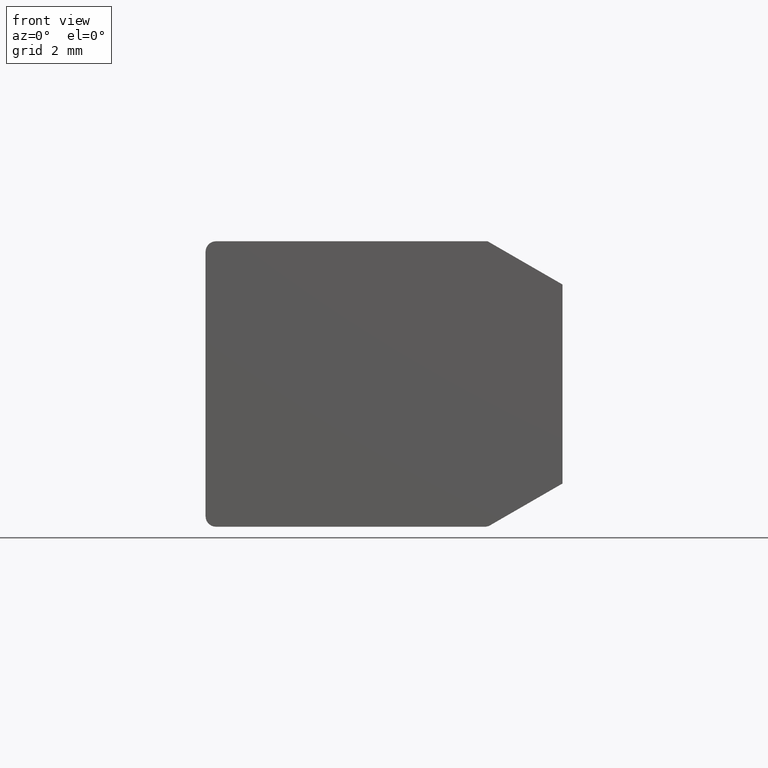
[diagram: clean part render]
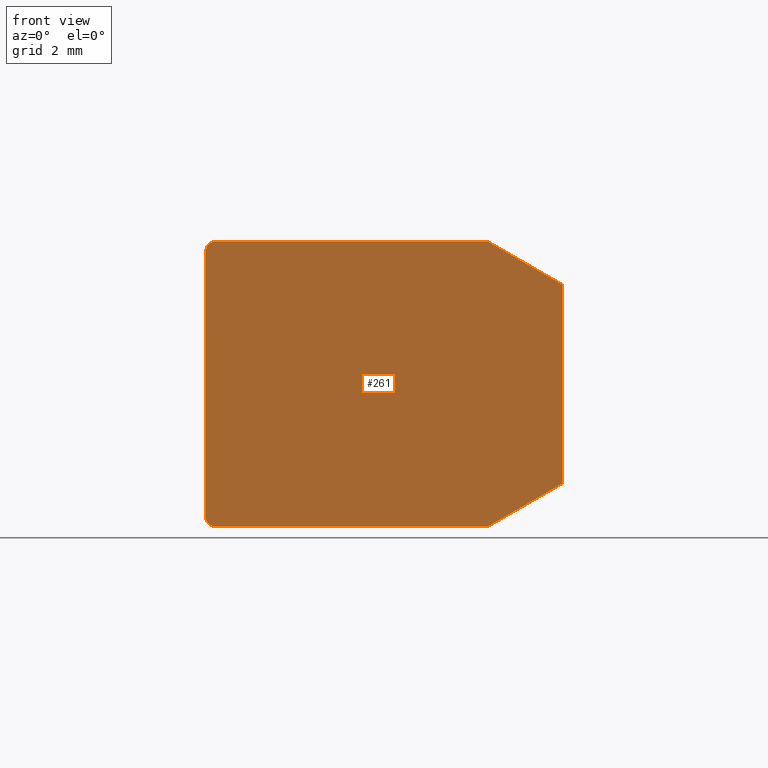
[diagram: same view with one face highlighted and labeled with its STEP entity id]
A machine part, front view. The second image highlights one B-rep face of the part: STEP entity #261.
In plain terms, the highlighted planar face has unit normal (-0, -1, 0).
Its self-contained STEP definition (entity closure, byte-faithful):
#24=CIRCLE('',#301,0.295566502199999);
#25=CIRCLE('',#302,0.2955665022);
#26=CIRCLE('',#303,0.295566502200013);
#36=FACE_OUTER_BOUND('',#52,.T.);
#52=EDGE_LOOP('',(#183,#184,#185,#186,#187,#188,#189,#190,#191));
#72=LINE('',#416,#97);
#73=LINE('',#419,#98);
#74=LINE('',#421,#99);
#75=LINE('',#425,#100);
#76=LINE('',#429,#101);
#77=LINE('',#432,#102);
#97=VECTOR('',#333,10.);
#98=VECTOR('',#336,9.85221674);
#99=VECTOR('',#337,9.85221674);
#100=VECTOR('',#340,9.85221674);
#101=VECTOR('',#343,9.85221674);
#102=VECTOR('',#346,9.85221674);
#120=VERTEX_POINT('',#410);
#122=VERTEX_POINT('',#414);
#123=VERTEX_POINT('',#418);
#124=VERTEX_POINT('',#420);
#125=VERTEX_POINT('',#422);
#126=VERTEX_POINT('',#424);
#127=VERTEX_POINT('',#426);
#128=VERTEX_POINT('',#428);
#129=VERTEX_POINT('',#430);
#146=EDGE_CURVE('',#120,#122,#72,.T.);
#147=EDGE_CURVE('',#122,#123,#73,.T.);
#148=EDGE_CURVE('',#123,#124,#74,.T.);
#149=EDGE_CURVE('',#124,#125,#24,.T.);
#150=EDGE_CURVE('',#125,#126,#75,.T.);
#151=EDGE_CURVE('',#126,#127,#25,.T.);
#152=EDGE_CURVE('',#127,#128,#76,.T.);
#153=EDGE_CURVE('',#128,#129,#26,.T.);
#154=EDGE_CURVE('',#129,#120,#77,.T.);
#183=ORIENTED_EDGE('',*,*,#146,.T.);
#184=ORIENTED_EDGE('',*,*,#147,.T.);
#185=ORIENTED_EDGE('',*,*,#148,.T.);
#186=ORIENTED_EDGE('',*,*,#149,.T.);
#187=ORIENTED_EDGE('',*,*,#150,.T.);
#188=ORIENTED_EDGE('',*,*,#151,.T.);
#189=ORIENTED_EDGE('',*,*,#152,.T.);
#190=ORIENTED_EDGE('',*,*,#153,.T.);
#191=ORIENTED_EDGE('',*,*,#154,.T.);
#252=PLANE('',#300);
#261=ADVANCED_FACE('',(#36),#252,.T.);
#300=AXIS2_PLACEMENT_3D('',#417,#334,#335);
#301=AXIS2_PLACEMENT_3D('',#423,#338,#339);
#302=AXIS2_PLACEMENT_3D('',#427,#341,#342);
#303=AXIS2_PLACEMENT_3D('',#431,#344,#345);
#333=DIRECTION('',(5.83839535189803E-16,3.53883589099267E-16,1.));
#334=DIRECTION('center_axis',(-1.77635683940025E-15,-1.,3.53883589099268E-16));
#335=DIRECTION('ref_axis',(1.,-1.77635683940025E-15,-3.88578058618804E-16));
#336=DIRECTION('',(-0.866025403784438,1.71531194365648E-15,0.500000000000001));
#337=DIRECTION('',(-1.,1.77635683940025E-15,3.81533496279812E-16));
#338=DIRECTION('center_axis',(-1.77635683940025E-15,-1.,3.53883589099268E-16));
#339=DIRECTION('ref_axis',(-1.,1.77635683940025E-15,-2.50262773467589E-15));
#340=DIRECTION('',(-3.88578058618805E-16,-3.53883589099267E-16,-1.));
#341=DIRECTION('center_axis',(-1.77635683940025E-15,-1.,3.53883589099268E-16));
#342=DIRECTION('ref_axis',(-3.88578058618805E-16,-3.53883589099267E-16,
-1.));
#343=DIRECTION('',(1.,-1.77635683940025E-15,-3.88578058618804E-16));
#344=DIRECTION('center_axis',(-1.77635683940025E-15,-1.,3.53883589099268E-16));
#345=DIRECTION('ref_axis',(0.499999999999992,-1.19465059784249E-15,-0.866025403784443));
#346=DIRECTION('',(0.866025403784439,-1.36142835455722E-15,0.5));
#410=CARTESIAN_POINT('',(-4.57583974066252,25.8049562624897,-34.1284674292122));
#414=CARTESIAN_POINT('',(-4.57583974066251,25.8049562624897,-28.5511171644726));
#416=CARTESIAN_POINT('',(-4.57583974066252,25.8049562624897,-29.8397922968424));
#417=CARTESIAN_POINT('Origin',(-10.80367224699,25.8049562624898,-31.3397922968424));
#418=CARTESIAN_POINT('',(-6.67391594970354,25.8049562624898,-27.3397923004024));
#419=CARTESIAN_POINT('',(-7.35654915817229,25.8049562624897,-26.9456738337352));
#420=CARTESIAN_POINT('',(-14.2802732291175,25.8049562624898,-27.3397923004024));
#421=CARTESIAN_POINT('',(-12.5419727380538,25.8049562624898,-27.3397923004024));
#422=CARTESIAN_POINT('',(-14.5758397313175,25.8049562624898,-27.6353588026024));
#423=CARTESIAN_POINT('Origin',(-14.2802732291175,25.8049562624898,-27.6353588026024));
#424=CARTESIAN_POINT('',(-14.5758397313175,25.8049562624898,-35.0442257910824));
#425=CARTESIAN_POINT('',(-14.5758397313175,25.8049562624898,-33.1920090439624));
#426=CARTESIAN_POINT('',(-14.2802732291175,25.8049562624898,-35.3397922932824));
#427=CARTESIAN_POINT('Origin',(-14.2802732291175,25.8049562624898,-35.0442257910824));
#428=CARTESIAN_POINT('',(-6.75311275527772,25.8049562624897,-35.3397922932824));
#429=CARTESIAN_POINT('',(-8.77839250113387,25.8049562624897,-35.3397922932824));
#430=CARTESIAN_POINT('',(-6.60532950417772,25.8049562624897,-35.3001938904953));
#431=CARTESIAN_POINT('Origin',(-6.75311275527772,25.8049562624897,-35.0442257910824));
#432=CARTESIAN_POINT('',(-6.13140267920178,25.8049562624897,-35.0265721105192));